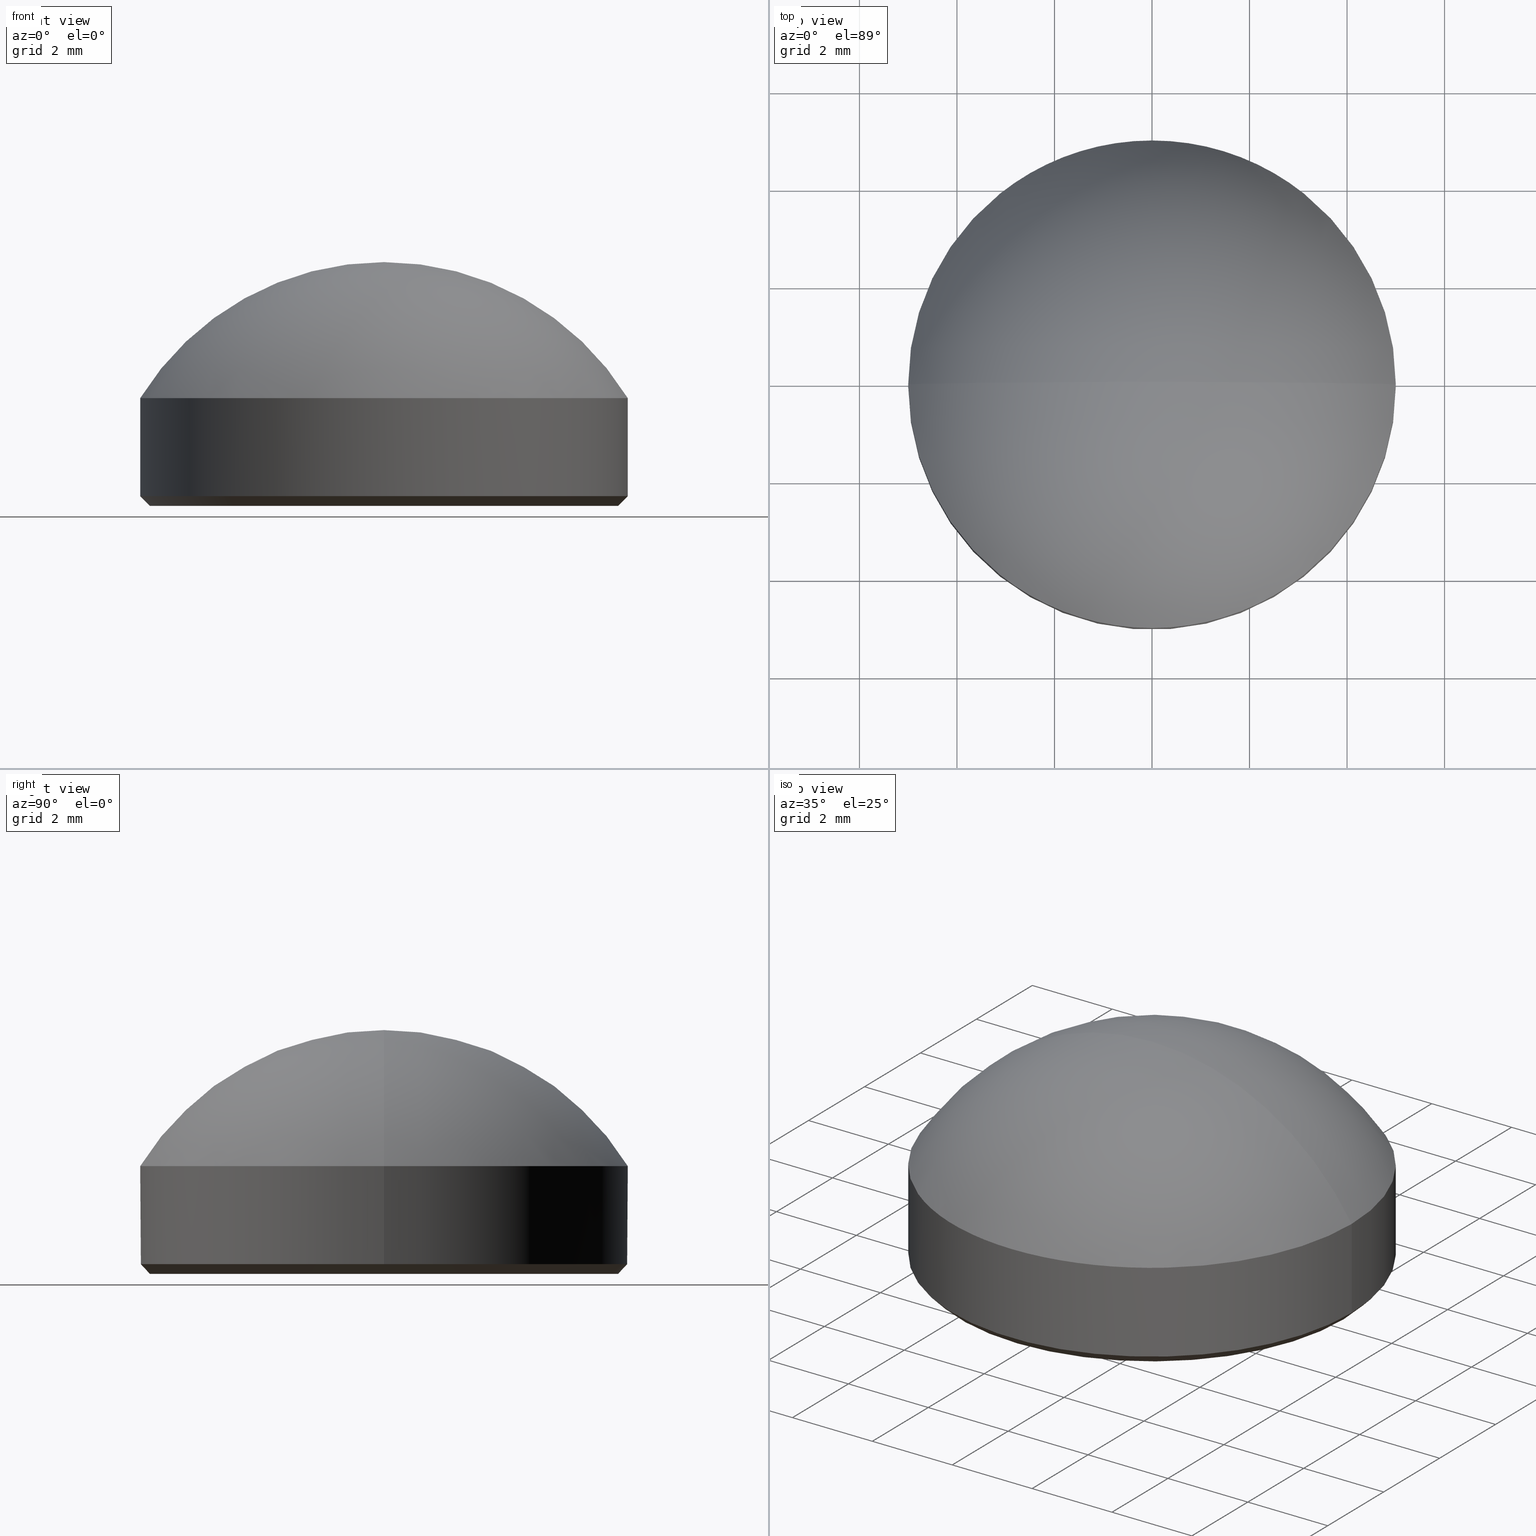
[diagram: canonical four-view strip — front | top / right | iso, engineering-drawing reading convention]
A machine part, canonical four-view strip (front | top / right | iso — engineering-drawing reading convention). The complete STEP part file that produces these views, byte-faithful:
ISO-10303-21;
HEADER;
FILE_DESCRIPTION (( 'STEP AP214' ),
    '1' );
FILE_NAME ('GLA11-010-7.5-VIS.STEP',
    '2024-08-09T08:25:05',
    ( 'Windows User' ),
    ( 'P R C' ),
    'SwSTEP 2.0',
    'SolidWorks 2022',
    '' );
FILE_SCHEMA (( 'AUTOMOTIVE_DESIGN' ));
ENDSEC;

DATA;
#1 =( NAMED_UNIT ( * ) SI_UNIT ( $, .STERADIAN. ) SOLID_ANGLE_UNIT ( ) );
#2 = AXIS2_PLACEMENT_3D ( 'NONE', #119, #117, #158 ) ;
#3 = SURFACE_STYLE_USAGE ( .BOTH. , #179 ) ;
#4 = ADVANCED_FACE ( 'NONE', ( #63 ), #184, .T. ) ;
#5 = PRODUCT_DEFINITION_FORMATION_WITH_SPECIFIED_SOURCE ( '�κ�', '', #196, .NOT_KNOWN. ) ;
#6 = EDGE_CURVE ( 'NONE', #167, #28, #36, .T. ) ;
#7 = AXIS2_PLACEMENT_3D ( 'NONE', #48, #67, #101 ) ;
#8 = DIRECTION ( 'NONE',  ( -0.000000000000000000, -0.000000000000000000, 1.000000000000000000 ) ) ;
#9 = FACE_OUTER_BOUND ( 'NONE', #61, .T. ) ;
#10 = ORIENTED_EDGE ( 'NONE', *, *, #66, .T. ) ;
#11 = CIRCLE ( 'NONE', #62, 5.000000000000000000 ) ;
#12 = DIRECTION ( 'NONE',  ( 1.000000000000000000, 0.000000000000000000, 0.000000000000000000 ) ) ;
#13 = PRODUCT_DEFINITION_CONTEXT ( 'detailed design', #208, 'design' ) ;
#14 = PRODUCT_RELATED_PRODUCT_CATEGORY ( 'part', '', ( #196 ) ) ;
#15 = LINE ( 'NONE', #178, #112 ) ;
#16 = AXIS2_PLACEMENT_3D ( 'NONE', #33, #50, #215 ) ;
#17 = CARTESIAN_POINT ( 'NONE',  ( 0.000000000000000000, 0.000000000000000000, 0.000000000000000000 ) ) ;
#18 = CARTESIAN_POINT ( 'NONE',  ( -5.000000000000000000, 0.000000000000000000, 2.209999999999999964 ) ) ;
#19 = DIRECTION ( 'NONE',  ( -1.000000000000000000, 0.000000000000000000, 0.000000000000000000 ) ) ;
#20 = ORIENTED_EDGE ( 'NONE', *, *, #84, .F. ) ;
#21 =( NAMED_UNIT ( * ) PLANE_ANGLE_UNIT ( ) SI_UNIT ( $, .RADIAN. ) );
#22 = ORIENTED_EDGE ( 'NONE', *, *, #93, .F. ) ;
#23 = ORIENTED_EDGE ( 'NONE', *, *, #102, .T. ) ;
#24 = AXIS2_PLACEMENT_3D ( 'NONE', #174, #161, #145 ) ;
#25 = LINE ( 'NONE', #207, #166 ) ;
#26 = ORIENTED_EDGE ( 'NONE', *, *, #30, .T. ) ;
#27 = VERTEX_POINT ( 'NONE', #129 ) ;
#28 = VERTEX_POINT ( 'NONE', #126 ) ;
#29 = SPHERICAL_SURFACE ( 'NONE', #7, 5.875286738351255700 ) ;
#30 = EDGE_CURVE ( 'NONE', #183, #167, #97, .T. ) ;
#31 = PRODUCT_DEFINITION_SHAPE ( 'NONE', 'NONE',  #180 ) ;
#32 = CARTESIAN_POINT ( 'NONE',  ( 0.000000000000000000, 0.000000000000000000, -0.8752867383512550337 ) ) ;
#33 = CARTESIAN_POINT ( 'NONE',  ( 0.000000000000000000, 0.000000000000000000, -0.8752867383512550337 ) ) ;
#34 = CARTESIAN_POINT ( 'NONE',  ( -4.800000000000000711, 6.000769315822031726E-16, 0.000000000000000000 ) ) ;
#35 = FACE_OUTER_BOUND ( 'NONE', #148, .T. ) ;
#36 = CIRCLE ( 'NONE', #181, 5.875286738351255700 ) ;
#37 = CARTESIAN_POINT ( 'NONE',  ( 0.000000000000000000, 0.000000000000000000, 2.209999999999999964 ) ) ;
#38 = EDGE_CURVE ( 'NONE', #156, #27, #77, .T. ) ;
#39 = FILL_AREA_STYLE ('',( #185 ) ) ;
#40 = ORIENTED_EDGE ( 'NONE', *, *, #213, .T. ) ;
#41 = AXIS2_PLACEMENT_3D ( 'NONE', #146, #86, #147 ) ;
#42 =( LENGTH_UNIT ( ) NAMED_UNIT ( * ) SI_UNIT ( .MILLI., .METRE. ) );
#43 = DIRECTION ( 'NONE',  ( -1.000000000000000000, 0.000000000000000000, 0.000000000000000000 ) ) ;
#44 = AXIS2_PLACEMENT_3D ( 'NONE', #186, #76, #43 ) ;
#45 = ORIENTED_EDGE ( 'NONE', *, *, #38, .T. ) ;
#46 = EDGE_LOOP ( 'NONE', ( #188, #111, #115, #22 ) ) ;
#47 = FACE_OUTER_BOUND ( 'NONE', #98, .T. ) ;
#48 = CARTESIAN_POINT ( 'NONE',  ( 0.000000000000000000, 0.000000000000000000, -0.8752867383512550337 ) ) ;
#49 = UNCERTAINTY_MEASURE_WITH_UNIT (LENGTH_MEASURE( 1.000000000000000082E-05 ), #85, 'distance_accuracy_value', 'NONE');
#50 = DIRECTION ( 'NONE',  ( -0.000000000000000000, -1.000000000000000000, 0.000000000000000000 ) ) ;
#51 = SPHERICAL_SURFACE ( 'NONE', #16, 5.875286738351255700 ) ;
#52 =( GEOMETRIC_REPRESENTATION_CONTEXT ( 3 ) GLOBAL_UNCERTAINTY_ASSIGNED_CONTEXT ( ( #151 ) ) GLOBAL_UNIT_ASSIGNED_CONTEXT ( ( #42, #89, #203 ) ) REPRESENTATION_CONTEXT ( 'NONE', 'WORKASPACE' ) );
#53 = DIRECTION ( 'NONE',  ( 1.000000000000000000, 0.000000000000000000, 0.000000000000000000 ) ) ;
#54 = DIRECTION ( 'NONE',  ( 0.000000000000000000, 0.000000000000000000, 1.000000000000000000 ) ) ;
#55 = MECHANICAL_DESIGN_GEOMETRIC_PRESENTATION_REPRESENTATION (  '', ( #172 ), #52 ) ;
#56 = ADVANCED_FACE ( 'NONE', ( #47 ), #191, .T. ) ;
#57 = SURFACE_STYLE_FILL_AREA ( #39 ) ;
#58 = DIRECTION ( 'NONE',  ( -0.000000000000000000, -0.000000000000000000, -1.000000000000000000 ) ) ;
#59 = PRODUCT_CONTEXT ( 'NONE', #194, 'mechanical' ) ;
#60 = DIRECTION ( 'NONE',  ( 1.000000000000000000, 0.000000000000000000, 0.000000000000000000 ) ) ;
#61 = EDGE_LOOP ( 'NONE', ( #138, #90 ) ) ;
#62 = AXIS2_PLACEMENT_3D ( 'NONE', #157, #193, #12 ) ;
#63 = FACE_OUTER_BOUND ( 'NONE', #153, .T. ) ;
#64 = ORIENTED_EDGE ( 'NONE', *, *, #6, .T. ) ;
#65 = CLOSED_SHELL ( 'NONE', ( #124, #118, #197, #56, #81, #108, #4 ) ) ;
#66 = EDGE_CURVE ( 'NONE', #167, #27, #25, .T. ) ;
#67 = DIRECTION ( 'NONE',  ( -0.000000000000000000, -1.000000000000000000, 0.000000000000000000 ) ) ;
#68 = ADVANCED_BREP_SHAPE_REPRESENTATION ( 'GLA11-010-7.5-VIS', ( #159, #41 ), #110 ) ;
#69 = PRESENTATION_STYLE_ASSIGNMENT (( #3 ) ) ;
#70 = DIRECTION ( 'NONE',  ( 1.000000000000000000, 0.000000000000000000, 0.000000000000000000 ) ) ;
#71 = COLOUR_RGB ( '',1.000000000000000000, 1.000000000000000000, 1.000000000000000000 ) ;
#72 = CARTESIAN_POINT ( 'NONE',  ( -5.000000000000000000, 0.000000000000000000, 2.209999999999999964 ) ) ;
#73 = PRESENTATION_STYLE_ASSIGNMENT (( #123 ) ) ;
#74 = EDGE_LOOP ( 'NONE', ( #94, #40, #23 ) ) ;
#75 = DIRECTION ( 'NONE',  ( -1.224646799147353207E-16, -1.000000000000000000, -0.000000000000000000 ) ) ;
#76 = DIRECTION ( 'NONE',  ( -0.000000000000000000, -0.000000000000000000, -1.000000000000000000 ) ) ;
#77 = CIRCLE ( 'NONE', #92, 5.000000000000000000 ) ;
#78 = DIRECTION ( 'NONE',  ( 0.000000000000000000, 0.000000000000000000, 1.000000000000000000 ) ) ;
#79 = CARTESIAN_POINT ( 'NONE',  ( -5.000000000000000000, 0.000000000000000000, 0.1999999999999987899 ) ) ;
#80 = FACE_OUTER_BOUND ( 'NONE', #46, .T. ) ;
#81 = ADVANCED_FACE ( 'NONE', ( #9 ), #141, .F. ) ;
#82 = FILL_AREA_STYLE_COLOUR ( '', #71 ) ;
#83 = CARTESIAN_POINT ( 'NONE',  ( 5.000000000000000000, 0.000000000000000000, 0.1999999999999987899 ) ) ;
#84 = EDGE_CURVE ( 'NONE', #91, #96, #122, .T. ) ;
#85 =( LENGTH_UNIT ( ) NAMED_UNIT ( * ) SI_UNIT ( .MILLI., .METRE. ) );
#86 = DIRECTION ( 'NONE',  ( 0.000000000000000000, 0.000000000000000000, 1.000000000000000000 ) ) ;
#87 = SHAPE_DEFINITION_REPRESENTATION ( #31, #68 ) ;
#88 = ORIENTED_EDGE ( 'NONE', *, *, #187, .F. ) ;
#89 =( NAMED_UNIT ( * ) PLANE_ANGLE_UNIT ( ) SI_UNIT ( $, .RADIAN. ) );
#90 = ORIENTED_EDGE ( 'NONE', *, *, #137, .T. ) ;
#91 = VERTEX_POINT ( 'NONE', #134 ) ;
#92 = AXIS2_PLACEMENT_3D ( 'NONE', #170, #168, #210 ) ;
#93 = EDGE_CURVE ( 'NONE', #91, #27, #177, .T. ) ;
#94 = ORIENTED_EDGE ( 'NONE', *, *, #6, .F. ) ;
#95 = ORIENTED_EDGE ( 'NONE', *, *, #205, .F. ) ;
#96 = VERTEX_POINT ( 'NONE', #34 ) ;
#97 = CIRCLE ( 'NONE', #120, 5.000000000000000000 ) ;
#98 = EDGE_LOOP ( 'NONE', ( #114, #164, #206, #45 ) ) ;
#99 = DIRECTION ( 'NONE',  ( 0.000000000000000000, 1.000000000000000000, 0.000000000000000000 ) ) ;
#100 = DIRECTION ( 'NONE',  ( -0.000000000000000000, -0.000000000000000000, -1.000000000000000000 ) ) ;
#101 = DIRECTION ( 'NONE',  ( -1.000000000000000000, 0.000000000000000000, 0.000000000000000000 ) ) ;
#102 = EDGE_CURVE ( 'NONE', #183, #28, #212, .T. ) ;
#103 = MECHANICAL_DESIGN_GEOMETRIC_PRESENTATION_REPRESENTATION (  '', ( #200 ), #169 ) ;
#104 = DIRECTION ( 'NONE',  ( 1.000000000000000000, 0.000000000000000000, -0.000000000000000000 ) ) ;
#105 = DIRECTION ( 'NONE',  ( -0.7071067811865490160, 8.659560562354953812E-17, 0.7071067811865460184 ) ) ;
#106 = VECTOR ( 'NONE', #132, 1000.000000000000114 ) ;
#107 = CARTESIAN_POINT ( 'NONE',  ( 0.000000000000000000, 0.000000000000000000, 2.209999999999999964 ) ) ;
#108 = ADVANCED_FACE ( 'NONE', ( #211 ), #29, .T. ) ;
#109 = EDGE_LOOP ( 'NONE', ( #26, #64, #131 ) ) ;
#110 =( GEOMETRIC_REPRESENTATION_CONTEXT ( 3 ) GLOBAL_UNCERTAINTY_ASSIGNED_CONTEXT ( ( #140 ) ) GLOBAL_UNIT_ASSIGNED_CONTEXT ( ( #182, #136, #204 ) ) REPRESENTATION_CONTEXT ( 'NONE', 'WORKASPACE' ) );
#111 = ORIENTED_EDGE ( 'NONE', *, *, #187, .T. ) ;
#112 = VECTOR ( 'NONE', #105, 1000.000000000000114 ) ;
#113 = CARTESIAN_POINT ( 'NONE',  ( 0.000000000000000000, 0.000000000000000000, 0.1999999999999987899 ) ) ;
#114 = ORIENTED_EDGE ( 'NONE', *, *, #66, .F. ) ;
#115 = ORIENTED_EDGE ( 'NONE', *, *, #130, .F. ) ;
#116 = PRESENTATION_LAYER_ASSIGNMENT (  '', '', ( #172 ) ) ;
#117 = DIRECTION ( 'NONE',  ( -0.000000000000000000, -0.000000000000000000, -1.000000000000000000 ) ) ;
#118 = ADVANCED_FACE ( 'NONE', ( #133 ), #51, .T. ) ;
#119 = CARTESIAN_POINT ( 'NONE',  ( 0.000000000000000000, 0.000000000000000000, 0.000000000000000000 ) ) ;
#120 = AXIS2_PLACEMENT_3D ( 'NONE', #209, #78, #143 ) ;
#121 = SURFACE_STYLE_FILL_AREA ( #214 ) ;
#122 = CIRCLE ( 'NONE', #155, 4.800000000000000711 ) ;
#123 = SURFACE_STYLE_USAGE ( .BOTH. , #163 ) ;
#124 = ADVANCED_FACE ( 'NONE', ( #80 ), #150, .T. ) ;
#125 = CIRCLE ( 'NONE', #176, 5.000000000000000000 ) ;
#126 = CARTESIAN_POINT ( 'NONE',  ( -3.597575549097378931E-16, 0.000000000000000000, 5.000000000000000888 ) ) ;
#127 = DIRECTION ( 'NONE',  ( -0.000000000000000000, -0.000000000000000000, -1.000000000000000000 ) ) ;
#128 = VECTOR ( 'NONE', #199, 1000.000000000000000 ) ;
#129 = CARTESIAN_POINT ( 'NONE',  ( 5.000000000000000000, 6.123233995736766282E-16, 0.1999999999999987899 ) ) ;
#130 = EDGE_CURVE ( 'NONE', #27, #156, #11, .T. ) ;
#131 = ORIENTED_EDGE ( 'NONE', *, *, #102, .F. ) ;
#132 = DIRECTION ( 'NONE',  ( 0.7071067811865490160, 0.000000000000000000, 0.7071067811865460184 ) ) ;
#133 = FACE_OUTER_BOUND ( 'NONE', #109, .T. ) ;
#134 = CARTESIAN_POINT ( 'NONE',  ( 4.800000000000000711, 0.000000000000000000, 0.000000000000000000 ) ) ;
#135 = LINE ( 'NONE', #18, #128 ) ;
#136 =( NAMED_UNIT ( * ) PLANE_ANGLE_UNIT ( ) SI_UNIT ( $, .RADIAN. ) );
#137 = EDGE_CURVE ( 'NONE', #96, #91, #216, .T. ) ;
#138 = ORIENTED_EDGE ( 'NONE', *, *, #84, .T. ) ;
#139 = DIRECTION ( 'NONE',  ( 1.000000000000000000, -1.224646799147353207E-16, 0.000000000000000000 ) ) ;
#140 = UNCERTAINTY_MEASURE_WITH_UNIT (LENGTH_MEASURE( 1.000000000000000082E-05 ), #182, 'distance_accuracy_value', 'NONE');
#141 = PLANE ( 'NONE',  #160 ) ;
#142 = AXIS2_PLACEMENT_3D ( 'NONE', #107, #58, #19 ) ;
#143 = DIRECTION ( 'NONE',  ( 1.000000000000000000, 0.000000000000000000, 0.000000000000000000 ) ) ;
#144 = PRESENTATION_LAYER_ASSIGNMENT (  '', '', ( #200 ) ) ;
#145 = DIRECTION ( 'NONE',  ( 1.000000000000000000, 0.000000000000000000, 0.000000000000000000 ) ) ;
#146 = CARTESIAN_POINT ( 'NONE',  ( 0.000000000000000000, 0.000000000000000000, 0.000000000000000000 ) ) ;
#147 = DIRECTION ( 'NONE',  ( 1.000000000000000000, 0.000000000000000000, 0.000000000000000000 ) ) ;
#148 = EDGE_LOOP ( 'NONE', ( #190, #10, #152, #95 ) ) ;
#149 = ORIENTED_EDGE ( 'NONE', *, *, #38, .F. ) ;
#150 = CONICAL_SURFACE ( 'NONE', #24, 5.000000000000000000, 0.7853981633974504994 ) ;
#151 = UNCERTAINTY_MEASURE_WITH_UNIT (LENGTH_MEASURE( 1.000000000000000082E-05 ), #42, 'distance_accuracy_value', 'NONE');
#152 = ORIENTED_EDGE ( 'NONE', *, *, #130, .T. ) ;
#153 = EDGE_LOOP ( 'NONE', ( #88, #20, #173, #149 ) ) ;
#154 = CARTESIAN_POINT ( 'NONE',  ( 0.000000000000000000, 0.000000000000000000, -0.8752867383512550337 ) ) ;
#155 = AXIS2_PLACEMENT_3D ( 'NONE', #17, #100, #53 ) ;
#156 = VERTEX_POINT ( 'NONE', #79 ) ;
#157 = CARTESIAN_POINT ( 'NONE',  ( 0.000000000000000000, 0.000000000000000000, 0.1999999999999987899 ) ) ;
#158 = DIRECTION ( 'NONE',  ( 1.000000000000000000, 0.000000000000000000, 0.000000000000000000 ) ) ;
#159 = MANIFOLD_SOLID_BREP ( '����1', #65 ) ;
#160 = AXIS2_PLACEMENT_3D ( 'NONE', #171, #175, #104 ) ;
#161 = DIRECTION ( 'NONE',  ( -0.000000000000000000, -0.000000000000000000, 1.000000000000000000 ) ) ;
#162 = CYLINDRICAL_SURFACE ( 'NONE', #142, 5.000000000000000000 ) ;
#163 = SURFACE_SIDE_STYLE ('',( #57 ) ) ;
#164 = ORIENTED_EDGE ( 'NONE', *, *, #30, .F. ) ;
#165 = APPLICATION_PROTOCOL_DEFINITION ( 'draft international standard', 'automotive_design', 1998, #208 ) ;
#166 = VECTOR ( 'NONE', #127, 1000.000000000000000 ) ;
#167 = VERTEX_POINT ( 'NONE', #201 ) ;
#168 = DIRECTION ( 'NONE',  ( -0.000000000000000000, -0.000000000000000000, 1.000000000000000000 ) ) ;
#169 =( GEOMETRIC_REPRESENTATION_CONTEXT ( 3 ) GLOBAL_UNCERTAINTY_ASSIGNED_CONTEXT ( ( #49 ) ) GLOBAL_UNIT_ASSIGNED_CONTEXT ( ( #85, #21, #1 ) ) REPRESENTATION_CONTEXT ( 'NONE', 'WORKASPACE' ) );
#170 = CARTESIAN_POINT ( 'NONE',  ( 0.000000000000000000, 0.000000000000000000, 0.1999999999999987899 ) ) ;
#171 = CARTESIAN_POINT ( 'NONE',  ( 0.000000000000000000, 0.000000000000000000, 0.000000000000000000 ) ) ;
#172 = STYLED_ITEM ( 'NONE', ( #73 ), #68 ) ;
#173 = ORIENTED_EDGE ( 'NONE', *, *, #93, .T. ) ;
#174 = CARTESIAN_POINT ( 'NONE',  ( 0.000000000000000000, 0.000000000000000000, 0.1999999999999987899 ) ) ;
#175 = DIRECTION ( 'NONE',  ( 0.000000000000000000, 0.000000000000000000, 1.000000000000000000 ) ) ;
#176 = AXIS2_PLACEMENT_3D ( 'NONE', #37, #54, #70 ) ;
#177 = LINE ( 'NONE', #83, #106 ) ;
#178 = CARTESIAN_POINT ( 'NONE',  ( -5.000000000000000000, 6.123233995736766282E-16, 0.1999999999999987899 ) ) ;
#179 = SURFACE_SIDE_STYLE ('',( #121 ) ) ;
#180 = PRODUCT_DEFINITION ( 'δ֪', '', #5, #13 ) ;
#181 = AXIS2_PLACEMENT_3D ( 'NONE', #154, #75, #139 ) ;
#182 =( LENGTH_UNIT ( ) NAMED_UNIT ( * ) SI_UNIT ( .MILLI., .METRE. ) );
#183 = VERTEX_POINT ( 'NONE', #72 ) ;
#184 = CONICAL_SURFACE ( 'NONE', #189, 5.000000000000000000, 0.7853981633974504994 ) ;
#185 = FILL_AREA_STYLE_COLOUR ( '', #192 ) ;
#186 = CARTESIAN_POINT ( 'NONE',  ( 0.000000000000000000, 0.000000000000000000, 2.209999999999999964 ) ) ;
#187 = EDGE_CURVE ( 'NONE', #96, #156, #15, .T. ) ;
#188 = ORIENTED_EDGE ( 'NONE', *, *, #137, .F. ) ;
#189 = AXIS2_PLACEMENT_3D ( 'NONE', #113, #8, #60 ) ;
#190 = ORIENTED_EDGE ( 'NONE', *, *, #213, .F. ) ;
#191 = CYLINDRICAL_SURFACE ( 'NONE', #44, 5.000000000000000000 ) ;
#192 = COLOUR_RGB ( '',1.000000000000000000, 1.000000000000000000, 1.000000000000000000 ) ;
#193 = DIRECTION ( 'NONE',  ( -0.000000000000000000, -0.000000000000000000, 1.000000000000000000 ) ) ;
#194 = APPLICATION_CONTEXT ( 'automotive_design' ) ;
#195 = DIRECTION ( 'NONE',  ( 0.000000000000000000, 0.000000000000000000, 1.000000000000000000 ) ) ;
#196 = PRODUCT ( 'GLA11-010-7.5-VIS', 'GLA11-010-7.5-VIS', '', ( #59 ) ) ;
#197 = ADVANCED_FACE ( 'NONE', ( #35 ), #162, .T. ) ;
#198 = AXIS2_PLACEMENT_3D ( 'NONE', #32, #99, #195 ) ;
#199 = DIRECTION ( 'NONE',  ( -0.000000000000000000, -0.000000000000000000, -1.000000000000000000 ) ) ;
#200 = STYLED_ITEM ( 'NONE', ( #69 ), #159 ) ;
#201 = CARTESIAN_POINT ( 'NONE',  ( 5.000000000000000000, 6.123233995736766282E-16, 2.209999999999999964 ) ) ;
#202 = APPLICATION_PROTOCOL_DEFINITION ( 'draft international standard', 'automotive_design', 1998, #194 ) ;
#203 =( NAMED_UNIT ( * ) SI_UNIT ( $, .STERADIAN. ) SOLID_ANGLE_UNIT ( ) );
#204 =( NAMED_UNIT ( * ) SI_UNIT ( $, .STERADIAN. ) SOLID_ANGLE_UNIT ( ) );
#205 = EDGE_CURVE ( 'NONE', #183, #156, #135, .T. ) ;
#206 = ORIENTED_EDGE ( 'NONE', *, *, #205, .T. ) ;
#207 = CARTESIAN_POINT ( 'NONE',  ( 5.000000000000000000, 6.123233995736766282E-16, 2.209999999999999964 ) ) ;
#208 = APPLICATION_CONTEXT ( 'automotive_design' ) ;
#209 = CARTESIAN_POINT ( 'NONE',  ( 0.000000000000000000, 0.000000000000000000, 2.209999999999999964 ) ) ;
#210 = DIRECTION ( 'NONE',  ( 1.000000000000000000, 0.000000000000000000, 0.000000000000000000 ) ) ;
#211 = FACE_OUTER_BOUND ( 'NONE', #74, .T. ) ;
#212 = CIRCLE ( 'NONE', #198, 5.875286738351255700 ) ;
#213 = EDGE_CURVE ( 'NONE', #167, #183, #125, .T. ) ;
#214 = FILL_AREA_STYLE ('',( #82 ) ) ;
#215 = DIRECTION ( 'NONE',  ( -1.000000000000000000, 0.000000000000000000, 0.000000000000000000 ) ) ;
#216 = CIRCLE ( 'NONE', #2, 4.800000000000000711 ) ;
ENDSEC;
END-ISO-10303-21;
